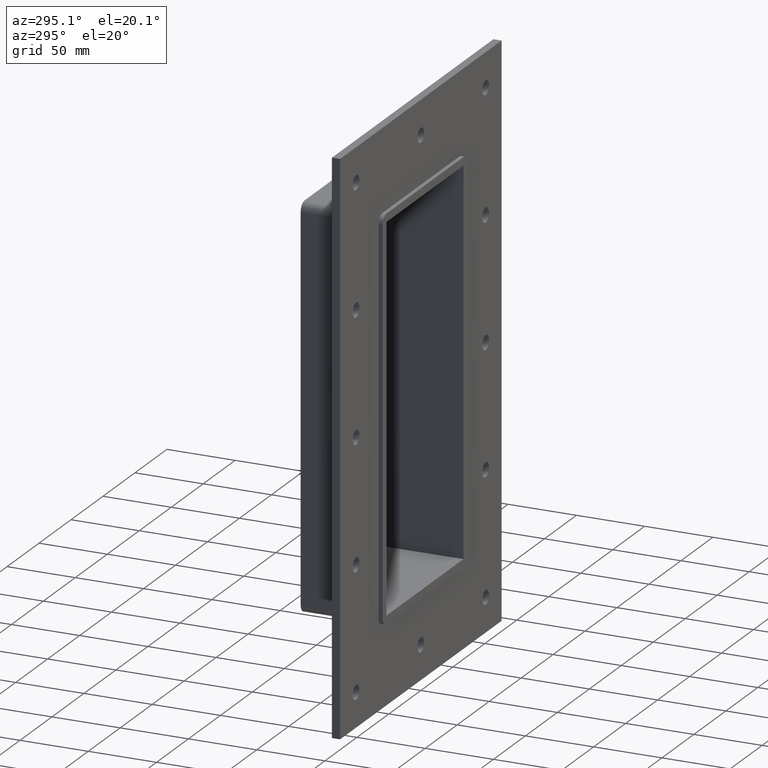
[diagram: clean part render]
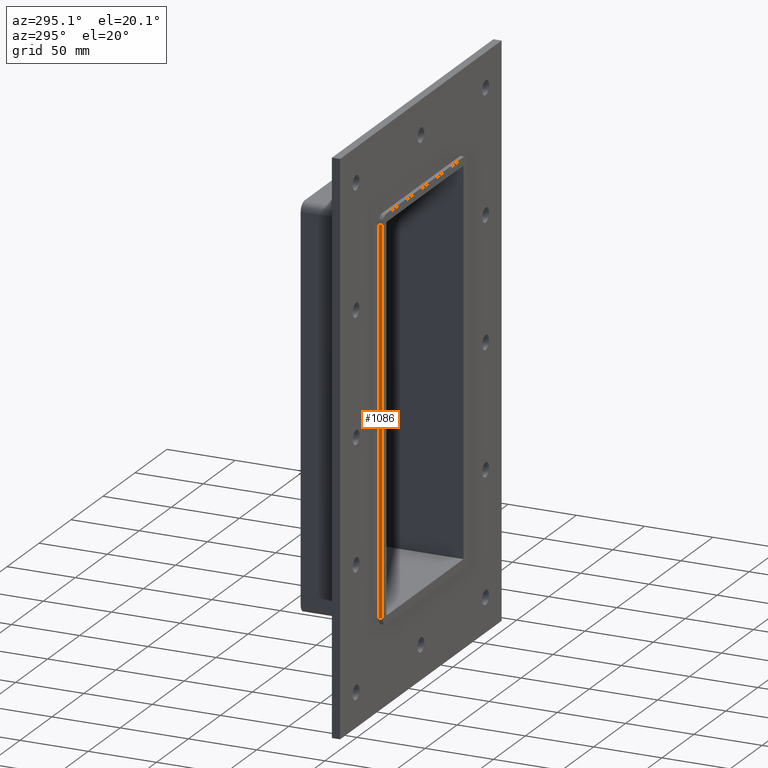
[diagram: same view with one face highlighted and labeled with its STEP entity id]
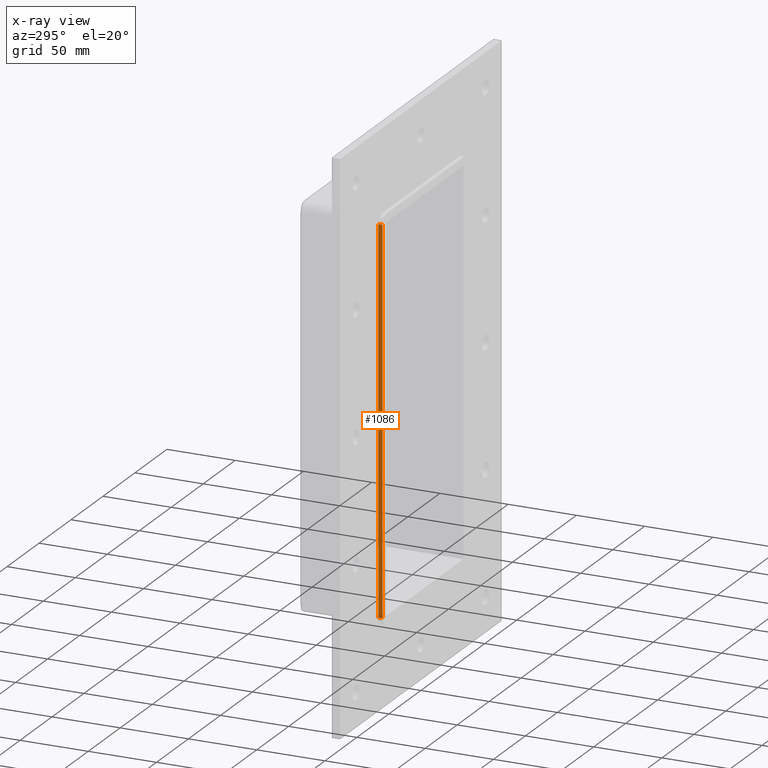
[diagram: x-ray of the same camera — body ghosted, the highlighted face saturated]
A machine part, auxiliary view. The second image highlights one B-rep face of the part: STEP entity #1086.
The next image is the same camera in x-ray: the body ghosted, the highlighted face saturated — about 0% of this face is hidden behind the body in this view.
In plain terms, the highlighted planar face has unit normal (-1, 0, 0).
Its self-contained STEP definition (entity closure, byte-faithful):
#625=CARTESIAN_POINT('',(-66.25,0.0,-139.0));
#626=VERTEX_POINT('',#625);
#636=CARTESIAN_POINT('',(-66.25,0.0,139.0));
#637=VERTEX_POINT('',#636);
#638=CARTESIAN_POINT('',(-66.25,0.0,139.0));
#639=DIRECTION('',(0.0,0.0,-1.0));
#640=VECTOR('',#639,278.0);
#641=LINE('',#638,#640);
#642=EDGE_CURVE('',#637,#626,#641,.T.);
#996=CARTESIAN_POINT('',(-66.25,-3.0,139.0));
#997=VERTEX_POINT('',#996);
#998=CARTESIAN_POINT('',(-66.25,0.0,139.0));
#999=DIRECTION('',(0.0,-1.0,0.0));
#1000=VECTOR('',#999,3.0);
#1001=LINE('',#998,#1000);
#1002=EDGE_CURVE('',#637,#997,#1001,.T.);
#1063=CARTESIAN_POINT('',(-66.25,0.0,-145.0));
#1064=DIRECTION('',(-1.0,0.0,0.0));
#1065=DIRECTION('',(0.0,0.0,1.0));
#1066=AXIS2_PLACEMENT_3D('',#1063,#1064,#1065);
#1067=PLANE('',#1066);
#1068=ORIENTED_EDGE('',*,*,#642,.T.);
#1069=CARTESIAN_POINT('',(-66.25,-3.0,-139.0));
#1070=VERTEX_POINT('',#1069);
#1071=CARTESIAN_POINT('',(-66.25,-3.0,-139.0));
#1072=DIRECTION('',(0.0,1.0,0.0));
#1073=VECTOR('',#1072,3.0);
#1074=LINE('',#1071,#1073);
#1075=EDGE_CURVE('',#1070,#626,#1074,.T.);
#1076=ORIENTED_EDGE('',*,*,#1075,.F.);
#1077=CARTESIAN_POINT('',(-66.25,-3.0,139.0));
#1078=DIRECTION('',(0.0,0.0,-1.0));
#1079=VECTOR('',#1078,278.0);
#1080=LINE('',#1077,#1079);
#1081=EDGE_CURVE('',#997,#1070,#1080,.T.);
#1082=ORIENTED_EDGE('',*,*,#1081,.F.);
#1083=ORIENTED_EDGE('',*,*,#1002,.F.);
#1084=EDGE_LOOP('',(#1068,#1076,#1082,#1083));
#1085=FACE_OUTER_BOUND('',#1084,.T.);
#1086=ADVANCED_FACE('',(#1085),#1067,.T.);